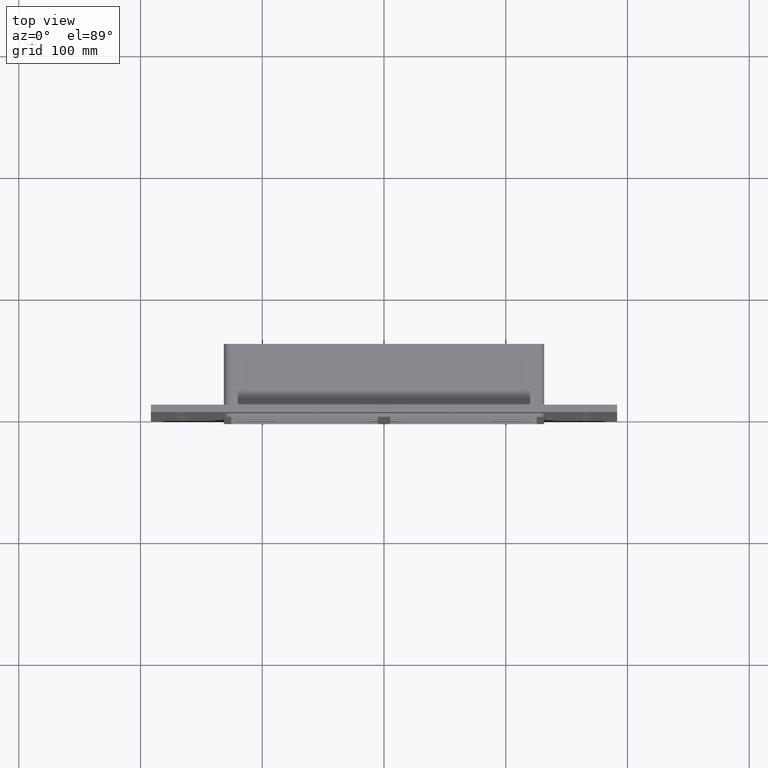
[diagram: clean part render]
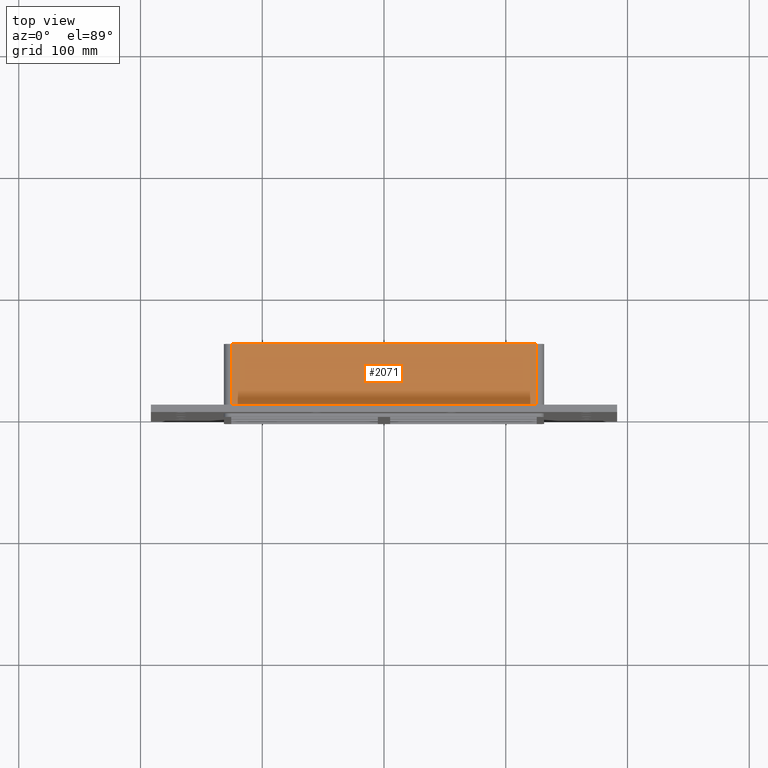
[diagram: same view with one face highlighted and labeled with its STEP entity id]
A machine part, top view. The second image highlights one B-rep face of the part: STEP entity #2071.
In plain terms, the highlighted planar face has unit normal (0, 0, 1).
Its self-contained STEP definition (entity closure, byte-faithful):
#1042=CARTESIAN_POINT('',(-125.49999999999997,57.0,169.50000000000003));
#1043=VERTEX_POINT('',#1042);
#1051=CARTESIAN_POINT('',(125.50000000000004,57.0,169.50000000000003));
#1052=VERTEX_POINT('',#1051);
#1053=CARTESIAN_POINT('',(-125.49999999999999,57.0,169.50000000000003));
#1054=DIRECTION('',(1.0,0.0,0.0));
#1055=VECTOR('',#1054,251.0);
#1056=LINE('',#1053,#1055);
#1057=EDGE_CURVE('',#1043,#1052,#1056,.T.);
#1416=CARTESIAN_POINT('',(125.50000000000004,6.000000000000001,169.50000000000003));
#1417=VERTEX_POINT('',#1416);
#1425=CARTESIAN_POINT('',(-125.49999999999997,6.000000000000001,169.50000000000003));
#1426=VERTEX_POINT('',#1425);
#1427=CARTESIAN_POINT('',(-125.49999999999997,6.000000000000001,169.50000000000003));
#1428=DIRECTION('',(1.0,0.0,0.0));
#1429=VECTOR('',#1428,251.0);
#1430=LINE('',#1427,#1429);
#1431=EDGE_CURVE('',#1426,#1417,#1430,.T.);
#1733=CARTESIAN_POINT('',(125.50000000000004,57.0,169.50000000000003));
#1734=DIRECTION('',(0.0,-1.0,0.0));
#1735=VECTOR('',#1734,51.0);
#1736=LINE('',#1733,#1735);
#1737=EDGE_CURVE('',#1052,#1417,#1736,.T.);
#2049=CARTESIAN_POINT('',(-125.49999999999997,6.000000000000001,169.50000000000003));
#2050=DIRECTION('',(0.0,1.0,0.0));
#2051=VECTOR('',#2050,51.0);
#2052=LINE('',#2049,#2051);
#2053=EDGE_CURVE('',#1426,#1043,#2052,.T.);
#2060=CARTESIAN_POINT('',(-131.5,0.0,169.50000000000003));
#2061=DIRECTION('',(0.0,0.0,1.0));
#2062=DIRECTION('',(1.0,0.0,0.0));
#2063=AXIS2_PLACEMENT_3D('',#2060,#2061,#2062);
#2064=PLANE('',#2063);
#2065=ORIENTED_EDGE('',*,*,#1431,.T.);
#2066=ORIENTED_EDGE('',*,*,#1737,.F.);
#2067=ORIENTED_EDGE('',*,*,#1057,.F.);
#2068=ORIENTED_EDGE('',*,*,#2053,.F.);
#2069=EDGE_LOOP('',(#2065,#2066,#2067,#2068));
#2070=FACE_OUTER_BOUND('',#2069,.T.);
#2071=ADVANCED_FACE('',(#2070),#2064,.T.);